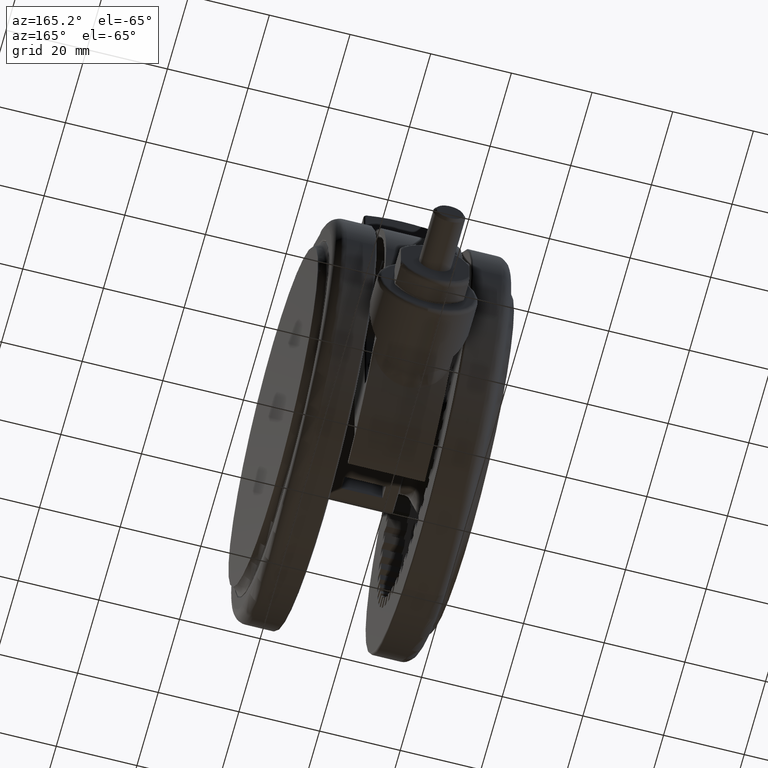
[diagram: clean part render]
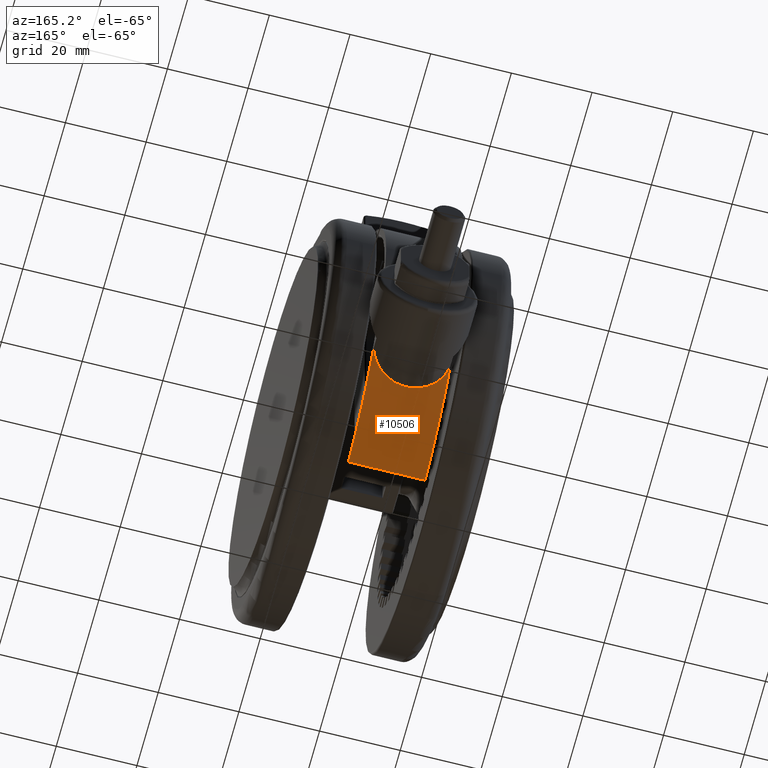
[diagram: same view with one face highlighted and labeled with its STEP entity id]
A machine part, auxiliary view. The second image highlights one B-rep face of the part: STEP entity #10506.
In plain terms, the highlighted cylindrical surface (partial cylindrical patch) has radius 50 mm, axis along (-1, 0, -0).
Its self-contained STEP definition (entity closure, byte-faithful):
#2890 = CARTESIAN_POINT ( 'NONE',  ( -35.44067592295424200, -35.27041211930942000, -31.66187379050731100 ) ) ;
#2940 = EDGE_LOOP ( 'NONE', ( #26927, #18108, #5036, #27857 ) ) ;
#3049 = CARTESIAN_POINT ( 'NONE',  ( -37.16940470234045800, -33.44309982805508200, -28.27631121025104500 ) ) ;
#3210 = CARTESIAN_POINT ( 'NONE',  ( -37.62730254866878700, -32.92698418948012300, -22.58655718073090700 ) ) ;
#3377 = CARTESIAN_POINT ( 'NONE',  ( -36.42248523555787900, -34.25506623938138500, -18.45084457819068300 ) ) ;
#3530 = CARTESIAN_POINT ( 'NONE',  ( -34.42855383075186600, -36.25845492202547100, -15.94830099442340400 ) ) ;
#5036 = ORIENTED_EDGE ( 'NONE', *, *, #38045, .F. ) ;
#5805 = CYLINDRICAL_SURFACE ( 'NONE', #45782, 50.00000000000000000 ) ;
#6681 = CARTESIAN_POINT ( 'NONE',  ( -35.78652116577914200, -34.91896835886084500, -31.20386254521234200 ) ) ;
#6836 = CARTESIAN_POINT ( 'NONE',  ( -37.26106686952010000, -33.34086187254301600, -27.94611248231604300 ) ) ;
#7013 = CARTESIAN_POINT ( 'NONE',  ( -37.53810011566732600, -33.02873721342446300, -21.93390471861028200 ) ) ;
#7164 = CARTESIAN_POINT ( 'NONE',  ( -36.22481259833247000, -34.46399058006397100, -18.08821197765285000 ) ) ;
#7323 = CARTESIAN_POINT ( 'NONE',  ( -34.36343508477920500, -36.32017561434445700, -15.89721210537177500 ) ) ;
#7751 = DIRECTION ( 'NONE',  ( 2.126349141558171200E-017, 1.779100357716780700E-016, 1.000000000000000000 ) ) ;
#8153 = DIRECTION ( 'NONE',  ( 1.000000000000000000, 1.067883571208054300E-016, -3.469446951953614200E-017 ) ) ;
#9434 = EDGE_CURVE ( 'NONE', #23947, #24004, #41201, .T. ) ;
#9782 = CARTESIAN_POINT ( 'NONE',  ( -47.80670531797670700, -14.64646464646465100, -33.79999999999994700 ) ) ;
#10286 = CARTESIAN_POINT ( 'NONE',  ( -33.47112494297424900, -37.14491371734087000, -33.28789916120126700 ) ) ;
#10447 = CARTESIAN_POINT ( 'NONE',  ( -35.99919553598415000, -34.69959086387142800, -30.88664248414129400 ) ) ;
#10506 = ADVANCED_FACE ( 'NONE', ( #45924 ), #5805, .T. ) ;
#10612 = CARTESIAN_POINT ( 'NONE',  ( -37.28692987240627600, -33.31193546800766100, -27.84773115021833700 ) ) ;
#10764 = CARTESIAN_POINT ( 'NONE',  ( -37.41532364989151900, -33.16771651198610000, -21.29456323546957800 ) ) ;
#10915 = CARTESIAN_POINT ( 'NONE',  ( -36.14486403006539900, -34.54778351006460500, -17.95191337277101300 ) ) ;
#11084 = CARTESIAN_POINT ( 'NONE',  ( -32.93632475842446900, -37.63405544468293600, -15.00704004669549500 ) ) ;
#14133 = CARTESIAN_POINT ( 'NONE',  ( -34.04114394600856700, -36.62272535003232600, -32.94360000546706900 ) ) ;
#14295 = CARTESIAN_POINT ( 'NONE',  ( -36.07827384832725000, -34.61731754484142000, -30.76019602690876200 ) ) ;
#14462 = CARTESIAN_POINT ( 'NONE',  ( -37.72667130563736000, -32.81308082199323900, -25.51326617930497100 ) ) ;
#14634 = CARTESIAN_POINT ( 'NONE',  ( -37.33401568358108600, -33.25915570764770000, -20.94450826853733700 ) ) ;
#14796 = CARTESIAN_POINT ( 'NONE',  ( -35.86658510468876000, -34.83840316452166500, -17.49143007598861700 ) ) ;
#15702 = CARTESIAN_POINT ( 'NONE',  ( -47.80670531797670700, -14.64646464646464700, -14.79999999999995100 ) ) ;
#15825 = CARTESIAN_POINT ( 'NONE',  ( 2.020031684480262600E-016, -1.779301612122672900E-015, -14.79999999999995500 ) ) ;
#15932 = VERTEX_POINT ( 'NONE', #15702 ) ;
#16635 = CARTESIAN_POINT ( 'NONE',  ( -32.12403840463594700, -38.31509045503450700, -14.79999999999995300 ) ) ;
#17639 = AXIS2_PLACEMENT_3D ( 'NONE', #30409, #7751, #34195 ) ;
#17777 = CARTESIAN_POINT ( 'NONE',  ( -32.53170146423691700, -37.97329865375606100, -33.69623421302765100 ) ) ;
#17946 = CARTESIAN_POINT ( 'NONE',  ( -34.25130445588094100, -36.42593799122978000, -32.79308796653023700 ) ) ;
#18099 = CARTESIAN_POINT ( 'NONE',  ( -36.36986337231447700, -34.31289385851399500, -30.28043021496837600 ) ) ;
#18108 = ORIENTED_EDGE ( 'NONE', *, *, #9434, .T. ) ;
#18265 = CARTESIAN_POINT ( 'NONE',  ( -37.71843996565846900, -32.82255396730249000, -23.70754885830939800 ) ) ;
#18424 = CARTESIAN_POINT ( 'NONE',  ( -37.30790920989749500, -33.28843755603158200, -20.83889342433607100 ) ) ;
#18583 = CARTESIAN_POINT ( 'NONE',  ( -35.15548171894425900, -35.55468087673803300, -16.61600918983972600 ) ) ;
#19592 = DIRECTION ( 'NONE',  ( -2.126349141558171200E-017, -1.779100357716780700E-016, -1.000000000000000000 ) ) ;
#20885 = EDGE_CURVE ( 'NONE', #15932, #25809, #48738, .T. ) ;
#21001 = DIRECTION ( 'NONE',  ( 2.126349141558171200E-017, 1.779100357716780700E-016, 1.000000000000000000 ) ) ;
#21714 = CARTESIAN_POINT ( 'NONE',  ( -34.31274652645726800, -36.36806705901759100, -32.74709739644021800 ) ) ;
#21871 = CARTESIAN_POINT ( 'NONE',  ( -36.89351901911390300, -33.74743635570672500, -29.10060216485619800 ) ) ;
#22040 = CARTESIAN_POINT ( 'NONE',  ( -37.67419706141804200, -32.87332735489306400, -23.03472540846654900 ) ) ;
#22194 = CARTESIAN_POINT ( 'NONE',  ( -36.99640792676802200, -33.63555748422570000, -19.75708853571503800 ) ) ;
#22355 = CARTESIAN_POINT ( 'NONE',  ( -34.76202998411207500, -35.93902763543094600, -16.23101237620689500 ) ) ;
#23947 = VERTEX_POINT ( 'NONE', #38905 ) ;
#24004 = VERTEX_POINT ( 'NONE', #16635 ) ;
#25501 = CARTESIAN_POINT ( 'NONE',  ( -34.99755747385133000, -35.71197130699533800, -32.16728140506390300 ) ) ;
#25667 = CARTESIAN_POINT ( 'NONE',  ( -37.10962394447583500, -33.50939683336971300, -28.47004904455606000 ) ) ;
#25781 = CIRCLE ( 'NONE', #29174, 50.00000000000000000 ) ;
#25809 = VERTEX_POINT ( 'NONE', #9782 ) ;
#25839 = CARTESIAN_POINT ( 'NONE',  ( -37.63603152371256800, -32.91700591041863800, -22.66235478231617500 ) ) ;
#26010 = CARTESIAN_POINT ( 'NONE',  ( -36.59406196103132200, -34.07202084390574000, -18.79451486379096900 ) ) ;
#26171 = CARTESIAN_POINT ( 'NONE',  ( -34.49252833873583100, -36.19767272266231100, -15.99937894774211600 ) ) ;
#26927 = ORIENTED_EDGE ( 'NONE', *, *, #27405, .T. ) ;
#27405 = EDGE_CURVE ( 'NONE', #25809, #23947, #25781, .T. ) ;
#27857 = ORIENTED_EDGE ( 'NONE', *, *, #20885, .T. ) ;
#29152 = CARTESIAN_POINT ( 'NONE',  ( -32.12403840463594700, -38.31509045503450700, -33.79999999999995500 ) ) ;
#29174 = AXIS2_PLACEMENT_3D ( 'NONE', #43608, #21001, #47387 ) ;
#29312 = CARTESIAN_POINT ( 'NONE',  ( -35.58246277233998000, -35.12728478887276400, -31.48419502736400600 ) ) ;
#29483 = CARTESIAN_POINT ( 'NONE',  ( -37.23429283232786000, -33.37077632623414300, -28.04583883585288700 ) ) ;
#29649 = CARTESIAN_POINT ( 'NONE',  ( -37.58251479947082200, -32.97813730035134900, -22.22206409546963400 ) ) ;
#29800 = CARTESIAN_POINT ( 'NONE',  ( -36.33370454684031600, -34.34932155627552000, -18.28148012701499400 ) ) ;
#29959 = CARTESIAN_POINT ( 'NONE',  ( -34.38569670367482400, -36.29910101383248400, -15.91452357569759700 ) ) ;
#30409 = CARTESIAN_POINT ( 'NONE',  ( 2.020031684480262600E-016, -1.779301612122672900E-015, -14.79999999999995500 ) ) ;
#31380 = DIRECTION ( 'NONE',  ( -2.126349141558171200E-017, -1.779100357716780700E-016, -1.000000000000000000 ) ) ;
#32929 = CARTESIAN_POINT ( 'NONE',  ( -32.91906115891493600, -37.63746394861338700, -33.55523827995644800 ) ) ;
#33096 = CARTESIAN_POINT ( 'NONE',  ( -35.88639470081733400, -34.81640338778236600, -31.06024271977734200 ) ) ;
#33256 = CARTESIAN_POINT ( 'NONE',  ( -37.27868678258919000, -33.32115974008785000, -27.87941658467040900 ) ) ;
#33414 = CARTESIAN_POINT ( 'NONE',  ( -37.45842529909910500, -33.11899733783679500, -21.50681829034573800 ) ) ;
#33588 = CARTESIAN_POINT ( 'NONE',  ( -36.17699705539665400, -34.51413370293438000, -18.00630928014252100 ) ) ;
#33742 = CARTESIAN_POINT ( 'NONE',  ( -33.67350113738653800, -36.97218770089946100, -15.36742604076278300 ) ) ;
#34195 = DIRECTION ( 'NONE',  ( -1.000000000000000000, -1.067883571208054300E-016, 3.469446951953614200E-017 ) ) ;
#35170 = VECTOR ( 'NONE', #31380, 1000.000000000000000 ) ;
#36737 = CARTESIAN_POINT ( 'NONE',  ( -33.73991292833539300, -36.90143508618617600, -33.14026829703659200 ) ) ;
#36745 = CIRCLE ( 'NONE', #17639, 50.00000000000000000 ) ;
#36906 = CARTESIAN_POINT ( 'NONE',  ( -36.04674763138156400, -34.65014434421257800, -30.81094728901973300 ) ) ;
#37077 = CARTESIAN_POINT ( 'NONE',  ( -37.58501714429105100, -32.97809629345243100, -26.68190859808843000 ) ) ;
#37240 = CARTESIAN_POINT ( 'NONE',  ( -37.35927654057920900, -33.23079222800549100, -21.04918661681228500 ) ) ;
#37399 = CARTESIAN_POINT ( 'NONE',  ( -36.12770660375957700, -34.56572447908613600, -17.92322606596905700 ) ) ;
#37556 = CARTESIAN_POINT ( 'NONE',  ( -32.12403840463594700, -38.31509045503450700, -14.79999999999995300 ) ) ;
#38045 = EDGE_CURVE ( 'NONE', #15932, #24004, #36745, .T. ) ;
#38905 = CARTESIAN_POINT ( 'NONE',  ( -32.12403840463594700, -38.31509045503450700, -33.79999999999995500 ) ) ;
#40509 = CARTESIAN_POINT ( 'NONE',  ( -34.18871064049903900, -36.48476154389398800, -32.83915778883793000 ) ) ;
#40685 = CARTESIAN_POINT ( 'NONE',  ( -36.09326724600050800, -34.60168511526687500, -30.73579949498943300 ) ) ;
#40833 = CARTESIAN_POINT ( 'NONE',  ( -37.72742056007386700, -32.81221933876857100, -24.00770164411783400 ) ) ;
#41004 = CARTESIAN_POINT ( 'NONE',  ( -37.31689872523924800, -33.27835986009030500, -20.87483004962538400 ) ) ;
#41164 = CARTESIAN_POINT ( 'NONE',  ( -35.59718382081288700, -35.11429071728594700, -17.12017626975241700 ) ) ;
#41201 = B_SPLINE_CURVE_WITH_KNOTS ( 'NONE', 3,
 ( #29152, #17777, #32929, #10286, #36737, #14133, #40509, #17946, #44282, #21714, #48098, #25501, #2890, #29312, #6681, #33096, #10447, #36906, #14295, #40685, #18099, #44458, #21871, #48261, #25667, #3049, #29483, #6836, #33256, #10612, #37077, #14462, #40833, #18265, #44618, #22040, #48420, #25839, #3210, #29649, #7013, #33414, #10764, #37240, #14634, #41004, #18424, #44787, #22194, #48581, #26010, #3377, #29800, #7164, #33588, #10915, #37399, #14796, #41164, #18583, #44933, #22355, #48733, #26171, #3530, #29959, #7323, #33742, #11084, #37556 ),
 .UNSPECIFIED., .F., .F.,
 ( 4, 2, 1, 1, 1, 2, 2, 2, 2, 1, 1, 2, 2, 2, 2, 1, 1, 2, 2, 2, 2, 1, 2, 2, 2, 1, 1, 2, 2, 2, 2, 1, 1, 2, 2, 2, 2, 1, 1, 2, 2, 4 ),
 ( 0.0000000000000000000, 0.06250000000000023600, 0.09375000000000065200, 0.1093750000000008600, 0.1171875000000009600, 0.1210937500000014600, 0.1250000000000019400, 0.1874999999999977000, 0.2187499999999953600, 0.2343749999999939200, 0.2421874999999932600, 0.2460937499999930900, 0.2499999999999929500, 0.3124999999999885600, 0.3437499999999862300, 0.3593749999999849000, 0.3671874999999842300, 0.3710937499999842900, 0.3749999999999842900, 0.4999999999999832900, 0.5312499999999831200, 0.5468749999999831200, 0.5546874999999830100, 0.5624999999999829000, 0.5937499999999817900, 0.6093749999999814600, 0.6171874999999813500, 0.6210937499999812400, 0.6249999999999811300, 0.6874999999999821300, 0.7187499999999827900, 0.7343749999999832400, 0.7421874999999836800, 0.7460937499999839000, 0.7499999999999841200, 0.8124999999999886800, 0.8437499999999909000, 0.8593749999999920100, 0.8671874999999923400, 0.8710937499999926700, 0.8749999999999928900, 1.000000000000000000 ),
 .UNSPECIFIED. ) ;
#43608 = CARTESIAN_POINT ( 'NONE',  ( -2.020031684480262600E-016, -5.159592291784555900E-015, -33.79999999999995500 ) ) ;
#44282 = CARTESIAN_POINT ( 'NONE',  ( -34.29288990464157600, -36.38679042535216000, -32.76208389114204800 ) ) ;
#44458 = CARTESIAN_POINT ( 'NONE',  ( -36.59771754745315100, -34.06892858752121400, -29.82475463302112600 ) ) ;
#44618 = CARTESIAN_POINT ( 'NONE',  ( -37.69123459779096000, -32.85378250809415600, -23.25875986144025400 ) ) ;
#44787 = CARTESIAN_POINT ( 'NONE',  ( -37.16268891530106100, -33.45110870720961300, -20.26802367117061000 ) ) ;
#44933 = CARTESIAN_POINT ( 'NONE',  ( -35.00197835031620700, -35.70589945023508000, -16.45673910144243400 ) ) ;
#45782 = AXIS2_PLACEMENT_3D ( 'NONE', #15825, #19592, #8153 ) ;
#45924 = FACE_OUTER_BOUND ( 'NONE', #2940, .T. ) ;
#46340 = CARTESIAN_POINT ( 'NONE',  ( -47.80670531797670700, -14.64646464646464700, -14.79999999999995100 ) ) ;
#47387 = DIRECTION ( 'NONE',  ( -1.000000000000000000, -1.067883571208054300E-016, 0.0000000000000000000 ) ) ;
#48098 = CARTESIAN_POINT ( 'NONE',  ( -34.67847468081328100, -36.02259843663026100, -32.46738158160381700 ) ) ;
#48261 = CARTESIAN_POINT ( 'NONE',  ( -36.98444995232170400, -33.64767337381376000, -28.85244482626054500 ) ) ;
#48420 = CARTESIAN_POINT ( 'NONE',  ( -37.65198884829154500, -32.89875199348075800, -22.81123102368416200 ) ) ;
#48581 = CARTESIAN_POINT ( 'NONE',  ( -36.70046858691684800, -33.95727959054358500, -19.03021689852306500 ) ) ;
#48733 = CARTESIAN_POINT ( 'NONE',  ( -34.63963226215736300, -36.05716634666075000, -16.12144361542922500 ) ) ;
#48738 = LINE ( 'NONE', #46340, #35170 ) ;